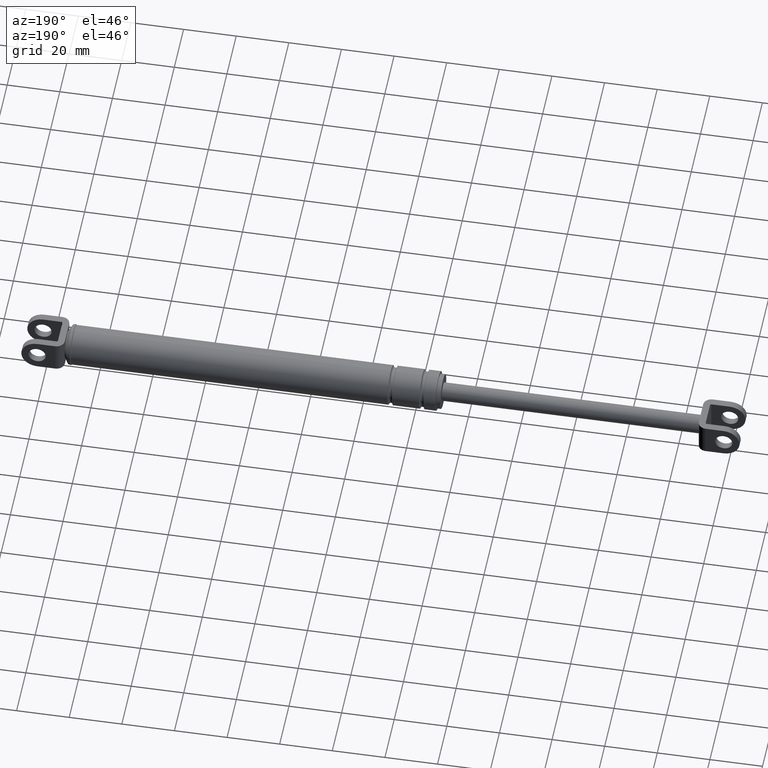
[diagram: clean part render]
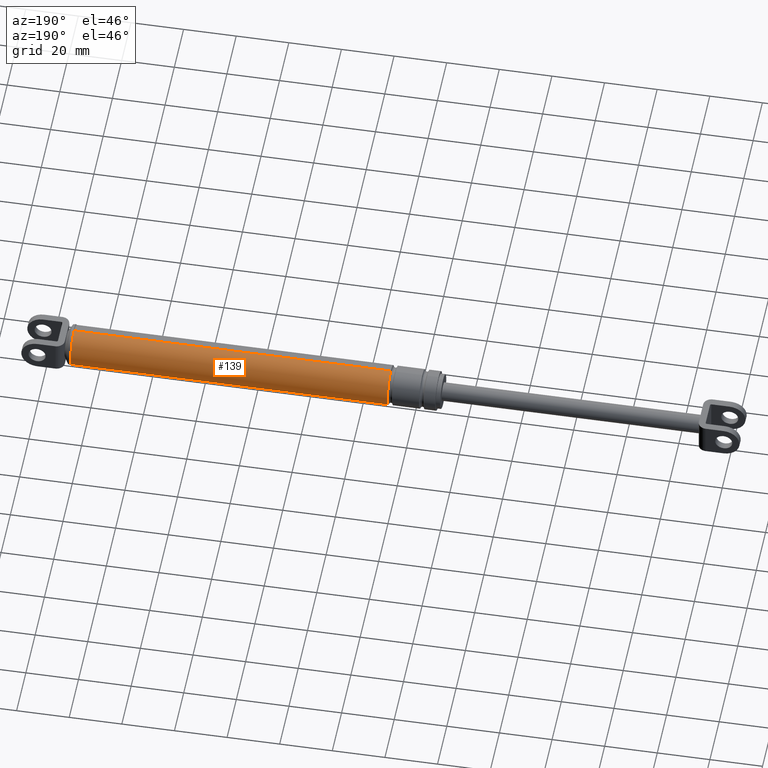
[diagram: same view with one face highlighted and labeled with its STEP entity id]
A machine part, auxiliary view. The second image highlights one B-rep face of the part: STEP entity #139.
In plain terms, the highlighted cylindrical surface (edge-blend (fillet) strip) has radius 7.5 mm, axis along (1, 0, 0).
Its self-contained STEP definition (entity closure, byte-faithful):
#139=ADVANCED_FACE('',(#450),#449,.T.);
#449=CYLINDRICAL_SURFACE('',#1043,7.50000000000E+000);
#450=FACE_OUTER_BOUND('',#1044,.T.);
#1040=CARTESIAN_POINT('',(0.00000000000E+000,0.00000000000E+000,1.88774157740E+002));
#1041=DIRECTION('',(1.00000000000E+000,-0.00000000000E+000,-0.00000000000E+000));
#1042=DIRECTION('',(0.00000000000E+000,0.00000000000E+000,-1.00000000000E+000));
#1043=AXIS2_PLACEMENT_3D('',#1040,#1041,#1042);
#1044=EDGE_LOOP('',(#1380,#1381,#1382,#1383));
#1380=ORIENTED_EDGE('',*,*,#1622,.T.);
#1381=ORIENTED_EDGE('',*,*,#1623,.F.);
#1382=ORIENTED_EDGE('',*,*,#1616,.F.);
#1383=ORIENTED_EDGE('',*,*,#1624,.T.);
#1616=EDGE_CURVE('',#2176,#2177,#2178,.T.);
#1622=EDGE_CURVE('',#2216,#2217,#2218,.T.);
#1623=EDGE_CURVE('',#2177,#2217,#2224,.T.);
#1624=EDGE_CURVE('',#2176,#2216,#2230,.T.);
#2176=VERTEX_POINT('',#2992);
#2177=VERTEX_POINT('',#2993);
#2178=CIRCLE('',#2997,7.50000000000E+000);
#2216=VERTEX_POINT('',#3022);
#2217=VERTEX_POINT('',#3023);
#2218=CIRCLE('',#3027,7.50000000000E+000);
#2224=(BOUNDED_CURVE() B_SPLINE_CURVE(1,(#3028,#3029),.UNSPECIFIED.,.F.,.F.) B_SPLINE_CURVE_WITH_KNOTS((2,2),(7.12504452090E-002,9.28749554888E-001),.UNSPECIFIED.) CURVE() GEOMETRIC_REPRESENTATION_ITEM() RATIONAL_B_SPLINE_CURVE((1.00000000000E+000,1.00000000000E+000)) REPRESENTATION_ITEM('') );
#2230=(BOUNDED_CURVE() B_SPLINE_CURVE(1,(#3030,#3031),.UNSPECIFIED.,.F.,.F.) B_SPLINE_CURVE_WITH_KNOTS((2,2),(7.12504453153E-002,9.28749554685E-001),.UNSPECIFIED.) CURVE() GEOMETRIC_REPRESENTATION_ITEM() RATIONAL_B_SPLINE_CURVE((7.50000000000E-001,7.50000000000E-001)) REPRESENTATION_ITEM('') );
#2992=CARTESIAN_POINT('',(1.69477030497E+002,0.00000000000E+000,1.96274157740E+002));
#2993=CARTESIAN_POINT('',(1.69477030497E+002,5.92118946467E-016,1.81274157740E+002));
#2994=CARTESIAN_POINT('',(1.69477030497E+002,0.00000000000E+000,1.88774157740E+002));
#2995=DIRECTION('',(-1.00000000000E+000,0.00000000000E+000,0.00000000000E+000));
#2996=DIRECTION('',(0.00000000000E+000,-1.22460635382E-016,1.00000000000E+000));
#2997=AXIS2_PLACEMENT_3D('',#2994,#2995,#2996);
#3022=CARTESIAN_POINT('',(2.89827030497E+002,0.00000000000E+000,1.96274157740E+002));
#3023=CARTESIAN_POINT('',(2.89827030497E+002,5.92118946467E-016,1.81274157740E+002));
#3024=CARTESIAN_POINT('',(2.89827030497E+002,0.00000000000E+000,1.88774157740E+002));
#3025=DIRECTION('',(-1.00000000000E+000,0.00000000000E+000,0.00000000000E+000));
#3026=DIRECTION('',(0.00000000000E+000,-1.22460635382E-016,1.00000000000E+000));
#3027=AXIS2_PLACEMENT_3D('',#3024,#3025,#3026);
#3028=CARTESIAN_POINT('',(1.69477030482E+002,0.00000000000E+000,1.81274157740E+002));
#3029=CARTESIAN_POINT('',(2.89827030525E+002,0.00000000000E+000,1.81274157740E+002));
#3030=CARTESIAN_POINT('',(1.69477030497E+002,-2.96059473233E-016,1.96274157740E+002));
#3031=CARTESIAN_POINT('',(2.89827030497E+002,-2.96059473233E-016,1.96274157740E+002));